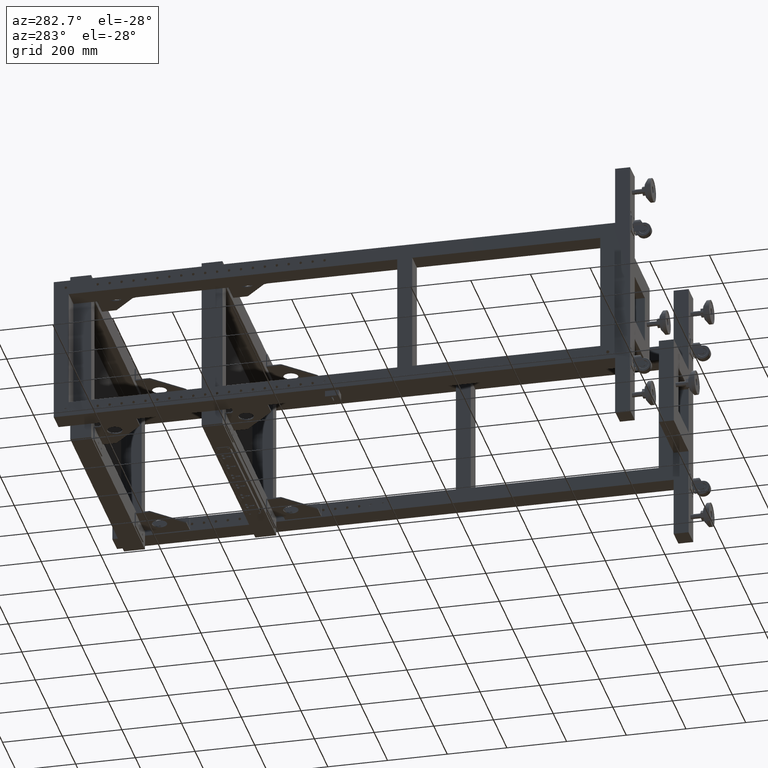
[diagram: clean part render]
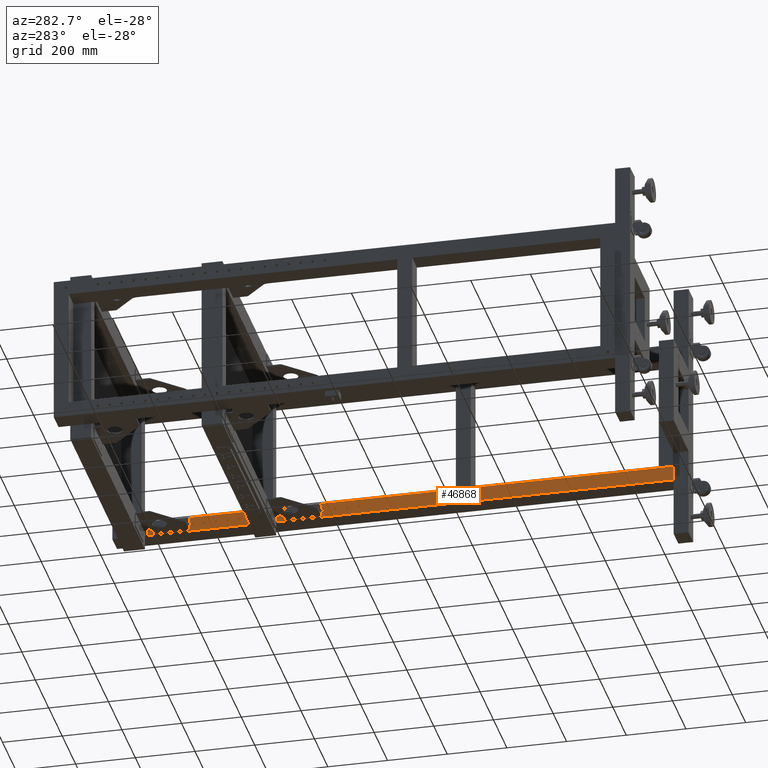
[diagram: same view with one face highlighted and labeled with its STEP entity id]
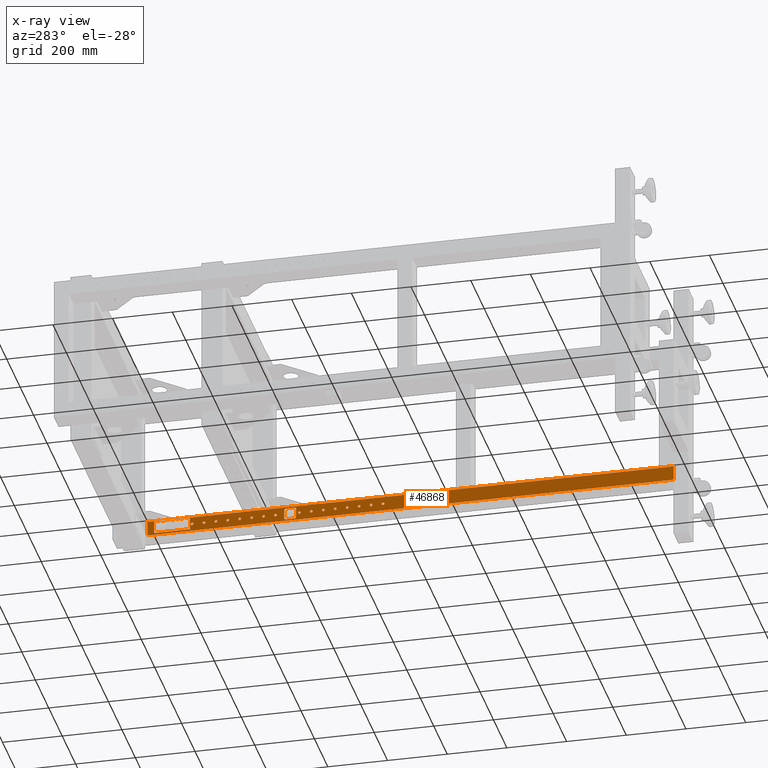
[diagram: x-ray of the same camera — body ghosted, the highlighted face saturated]
A machine part, auxiliary view. The second image highlights one B-rep face of the part: STEP entity #46868.
The next image is the same camera in x-ray: the body ghosted, the highlighted face saturated — about 0% of this face is hidden behind the body in this view.
In plain terms, the highlighted planar face has unit normal (-1, -0, -0).
Its self-contained STEP definition (entity closure, byte-faithful):
#147 = EDGE_CURVE ( 'NONE', #30893, #27719, #60564, .T. ) ;
#397 = AXIS2_PLACEMENT_3D ( 'NONE', #36648, #67865, #61380 ) ;
#458 = CIRCLE ( 'NONE', #38797, 4.500000000000003553 ) ;
#484 = VERTEX_POINT ( 'NONE', #52513 ) ;
#793 = CARTESIAN_POINT ( 'NONE',  ( -468.1724874371851115, 369.4410804020113233, -225.0000000000000000 ) ) ;
#913 = EDGE_LOOP ( 'NONE', ( #15796, #33667 ) ) ;
#1231 = LINE ( 'NONE', #32124, #66318 ) ;
#1333 = ORIENTED_EDGE ( 'NONE', *, *, #46867, .T. ) ;
#1342 = DIRECTION ( 'NONE',  ( 1.000000000000000000, 2.653611717788262425E-16, -0.000000000000000000 ) ) ;
#1567 = CARTESIAN_POINT ( 'NONE',  ( -468.1724874371853389, 919.4410804020113801, -200.0000000000000000 ) ) ;
#1580 = CARTESIAN_POINT ( 'NONE',  ( -468.1724874371853389, 851.4410804020112664, -243.9899999999986733 ) ) ;
#1636 = CARTESIAN_POINT ( 'NONE',  ( -468.1724874371855094, 889.9410804020112664, -200.9999999999986926 ) ) ;
#1818 = CARTESIAN_POINT ( 'NONE',  ( -468.1724874371853389, 609.4410804020113801, -225.0000000000000000 ) ) ;
#1829 = VECTOR ( 'NONE', #43428, 1000.000000000000000 ) ;
#1933 = EDGE_CURVE ( 'NONE', #41405, #65181, #3125, .T. ) ;
#2009 = DIRECTION ( 'NONE',  ( 1.000000000000000000, 2.653611717788262425E-16, -0.000000000000000000 ) ) ;
#2373 = CARTESIAN_POINT ( 'NONE',  ( -468.1724874371851115, 209.4410804020113233, -220.5000000000000000 ) ) ;
#2563 = DIRECTION ( 'NONE',  ( 1.000000000000000000, 2.653611717788262425E-16, -0.000000000000000000 ) ) ;
#3125 = CIRCLE ( 'NONE', #66767, 4.500000000000003553 ) ;
#3181 = EDGE_CURVE ( 'NONE', #38386, #56267, #26199, .T. ) ;
#3388 = CARTESIAN_POINT ( 'NONE',  ( -468.1724874371855094, 896.9410804020113801, -200.9999999999986926 ) ) ;
#3402 = EDGE_LOOP ( 'NONE', ( #11576, #34322 ) ) ;
#3770 = EDGE_LOOP ( 'NONE', ( #18078, #16749 ) ) ;
#4023 = CARTESIAN_POINT ( 'NONE',  ( -468.1724874371851115, 209.4410804020113233, -229.5000000000000000 ) ) ;
#4871 = DIRECTION ( 'NONE',  ( 1.000000000000000000, 2.653611717788262425E-16, -0.000000000000000000 ) ) ;
#4933 = ORIENTED_EDGE ( 'NONE', *, *, #46033, .T. ) ;
#4935 = CARTESIAN_POINT ( 'NONE',  ( -468.1724874371851115, 169.4410804020112664, -225.0000000000000000 ) ) ;
#5163 = DIRECTION ( 'NONE',  ( 0.000000000000000000, 0.000000000000000000, -1.000000000000000000 ) ) ;
#5220 = EDGE_LOOP ( 'NONE', ( #57094, #9026 ) ) ;
#5273 = FACE_BOUND ( 'NONE', #19659, .T. ) ;
#5290 = CIRCLE ( 'NONE', #10770, 7.000000000000006217 ) ;
#5486 = CARTESIAN_POINT ( 'NONE',  ( -468.1724874371853389, 689.4410804020113801, -225.0000000000000000 ) ) ;
#5509 = CARTESIAN_POINT ( 'NONE',  ( -468.1724874371853389, 769.4410804020113801, -229.5000000000000000 ) ) ;
#5521 = CARTESIAN_POINT ( 'NONE',  ( -468.1724874371851115, 169.4410804020112664, -229.5000000000000000 ) ) ;
#5537 = ORIENTED_EDGE ( 'NONE', *, *, #54185, .T. ) ;
#5938 = VERTEX_POINT ( 'NONE', #46241 ) ;
#6011 = DIRECTION ( 'NONE',  ( 1.000000000000000000, 2.653611717788262425E-16, -0.000000000000000000 ) ) ;
#6061 = CARTESIAN_POINT ( 'NONE',  ( -468.1724874371853389, 529.4410804020113801, -225.0000000000000000 ) ) ;
#6085 = AXIS2_PLACEMENT_3D ( 'NONE', #14416, #34291, #13740 ) ;
#6103 = EDGE_LOOP ( 'NONE', ( #13435, #60362 ) ) ;
#6141 = CARTESIAN_POINT ( 'NONE',  ( -468.1724874371851115, 129.4410804020113517, -225.0000000000000000 ) ) ;
#6169 = AXIS2_PLACEMENT_3D ( 'NONE', #5486, #41492, #33472 ) ;
#6316 = CARTESIAN_POINT ( 'NONE',  ( -468.1724874371851115, 289.4410804020112664, -220.5000000000000000 ) ) ;
#7233 = AXIS2_PLACEMENT_3D ( 'NONE', #42049, #35892, #62976 ) ;
#7253 = AXIS2_PLACEMENT_3D ( 'NONE', #18888, #9273, #24358 ) ;
#7305 = CARTESIAN_POINT ( 'NONE',  ( -468.1724874371851115, 129.4410804020113517, -225.0000000000000000 ) ) ;
#7398 = AXIS2_PLACEMENT_3D ( 'NONE', #17297, #22423, #38198 ) ;
#7465 = LINE ( 'NONE', #28370, #14976 ) ;
#7526 = CARTESIAN_POINT ( 'NONE',  ( -468.1724874371853389, 569.4410804020113801, -225.0000000000000000 ) ) ;
#7778 = EDGE_CURVE ( 'NONE', #47852, #15483, #16806, .T. ) ;
#8066 = DIRECTION ( 'NONE',  ( 1.000000000000000000, 2.653611717788262425E-16, -0.000000000000000000 ) ) ;
#8160 = DIRECTION ( 'NONE',  ( 1.000000000000000000, 2.653611717788262425E-16, -0.000000000000000000 ) ) ;
#8214 = EDGE_CURVE ( 'NONE', #45001, #5938, #35902, .T. ) ;
#8778 = CARTESIAN_POINT ( 'NONE',  ( -468.1724874371851115, 329.4410804020113233, -229.5000000000000000 ) ) ;
#9026 = ORIENTED_EDGE ( 'NONE', *, *, #35627, .T. ) ;
#9062 = LINE ( 'NONE', #24153, #67224 ) ;
#9073 = DIRECTION ( 'NONE',  ( 0.000000000000000000, 0.000000000000000000, -1.000000000000000000 ) ) ;
#9180 = CARTESIAN_POINT ( 'NONE',  ( -468.1724874371851115, 169.4410804020112664, -220.5000000000000000 ) ) ;
#9250 = ORIENTED_EDGE ( 'NONE', *, *, #33914, .T. ) ;
#9273 = DIRECTION ( 'NONE',  ( 1.000000000000000000, 2.653611717788262425E-16, -0.000000000000000000 ) ) ;
#9388 = EDGE_CURVE ( 'NONE', #45406, #67811, #35649, .T. ) ;
#9528 = DIRECTION ( 'NONE',  ( -2.653611717788262425E-16, 1.000000000000000000, 0.000000000000000000 ) ) ;
#9560 = CIRCLE ( 'NONE', #39115, 4.500000000000003553 ) ;
#9684 = CARTESIAN_POINT ( 'NONE',  ( -468.1724874371851115, 369.4410804020113233, -229.5000000000000000 ) ) ;
#9836 = CARTESIAN_POINT ( 'NONE',  ( -468.1724874371853389, 649.4410804020112664, -229.5000000000000000 ) ) ;
#9893 = CIRCLE ( 'NONE', #37230, 4.499999999999893419 ) ;
#10055 = EDGE_LOOP ( 'NONE', ( #66558, #5537 ) ) ;
#10081 = FACE_BOUND ( 'NONE', #59238, .T. ) ;
#10109 = CARTESIAN_POINT ( 'NONE',  ( -468.1724874371853389, 609.4410804020113801, -220.5000000000000000 ) ) ;
#10128 = EDGE_CURVE ( 'NONE', #42028, #18949, #33390, .T. ) ;
#10336 = AXIS2_PLACEMENT_3D ( 'NONE', #41620, #61862, #62544 ) ;
#10419 = FACE_BOUND ( 'NONE', #28071, .T. ) ;
#10470 = CARTESIAN_POINT ( 'NONE',  ( -468.1724874371853389, 729.4410804020113801, -225.0000000000000000 ) ) ;
#10689 = DIRECTION ( 'NONE',  ( 0.000000000000000000, 0.000000000000000000, -1.000000000000000000 ) ) ;
#10704 = AXIS2_PLACEMENT_3D ( 'NONE', #793, #54279, #38500 ) ;
#10770 = AXIS2_PLACEMENT_3D ( 'NONE', #17214, #48741, #28851 ) ;
#10994 = DIRECTION ( 'NONE',  ( 0.000000000000000000, 0.000000000000000000, -1.000000000000000000 ) ) ;
#11155 = CARTESIAN_POINT ( 'NONE',  ( -468.1724874371855094, 775.9410804020113801, -200.9999999999986926 ) ) ;
#11534 = EDGE_CURVE ( 'NONE', #18684, #48949, #458, .T. ) ;
#11565 = CARTESIAN_POINT ( 'NONE',  ( -468.1724874371855094, 775.9410804020113801, -207.9999999999986926 ) ) ;
#11576 = ORIENTED_EDGE ( 'NONE', *, *, #29111, .T. ) ;
#11794 = AXIS2_PLACEMENT_3D ( 'NONE', #36245, #56506, #61642 ) ;
#11877 = CARTESIAN_POINT ( 'NONE',  ( -468.1724874371853389, 425.4410804020112664, -240.0000000000000000 ) ) ;
#12039 = CIRCLE ( 'NONE', #56940, 4.500000000000003553 ) ;
#12155 = DIRECTION ( 'NONE',  ( 0.000000000000000000, 0.000000000000000000, -1.000000000000000000 ) ) ;
#12455 = DIRECTION ( 'NONE',  ( 1.000000000000000000, 2.653611717788262425E-16, -0.000000000000000000 ) ) ;
#12582 = ORIENTED_EDGE ( 'NONE', *, *, #57682, .T. ) ;
#12661 = DIRECTION ( 'NONE',  ( 0.000000000000000000, 0.000000000000000000, -1.000000000000000000 ) ) ;
#12708 = CARTESIAN_POINT ( 'NONE',  ( -468.1724874371851115, 289.4410804020112664, -229.5000000000000000 ) ) ;
#12869 = DIRECTION ( 'NONE',  ( 0.000000000000000000, 0.000000000000000000, -1.000000000000000000 ) ) ;
#13435 = ORIENTED_EDGE ( 'NONE', *, *, #35874, .T. ) ;
#13494 = DIRECTION ( 'NONE',  ( 0.000000000000000000, 0.000000000000000000, -1.000000000000000000 ) ) ;
#13602 = CARTESIAN_POINT ( 'NONE',  ( -468.1724874371851115, 129.4410804020113517, -229.5000000000000000 ) ) ;
#13603 = CIRCLE ( 'NONE', #22349, 4.500000000000003553 ) ;
#13740 = DIRECTION ( 'NONE',  ( 0.000000000000000000, 0.000000000000000000, -1.000000000000000000 ) ) ;
#14243 = AXIS2_PLACEMENT_3D ( 'NONE', #10470, #25223, #45793 ) ;
#14326 = ORIENTED_EDGE ( 'NONE', *, *, #39922, .T. ) ;
#14416 = CARTESIAN_POINT ( 'NONE',  ( -468.1724874371853389, 769.4410804020113801, -225.0000000000000000 ) ) ;
#14518 = EDGE_CURVE ( 'NONE', #54511, #36213, #61074, .T. ) ;
#14976 = VECTOR ( 'NONE', #17403, 1000.000000000000000 ) ;
#15061 = EDGE_LOOP ( 'NONE', ( #1333, #23221 ) ) ;
#15483 = VERTEX_POINT ( 'NONE', #39015 ) ;
#15617 = CIRCLE ( 'NONE', #20024, 4.500000000000003553 ) ;
#15681 = LINE ( 'NONE', #62329, #31622 ) ;
#15796 = ORIENTED_EDGE ( 'NONE', *, *, #147, .T. ) ;
#15981 = AXIS2_PLACEMENT_3D ( 'NONE', #36733, #26801, #10689 ) ;
#16093 = EDGE_CURVE ( 'NONE', #484, #35471, #37014, .T. ) ;
#16296 = CIRCLE ( 'NONE', #25043, 4.500000000000003553 ) ;
#16446 = CIRCLE ( 'NONE', #40661, 7.000000000000006217 ) ;
#16507 = EDGE_CURVE ( 'NONE', #27719, #30893, #23277, .T. ) ;
#16749 = ORIENTED_EDGE ( 'NONE', *, *, #59242, .T. ) ;
#16806 = CIRCLE ( 'NONE', #397, 5.000000000000004441 ) ;
#16828 = VERTEX_POINT ( 'NONE', #4023 ) ;
#16940 = AXIS2_PLACEMENT_3D ( 'NONE', #1818, #22755, #17619 ) ;
#17214 = CARTESIAN_POINT ( 'NONE',  ( -468.1724874371855094, 889.9410804020112664, -207.9999999999986926 ) ) ;
#17297 = CARTESIAN_POINT ( 'NONE',  ( -468.1724874371853389, 489.4410804020113233, -225.0000000000000000 ) ) ;
#17355 = DIRECTION ( 'NONE',  ( 1.000000000000000000, 2.653611717788262425E-16, -0.000000000000000000 ) ) ;
#17365 = DIRECTION ( 'NONE',  ( 1.000000000000000000, 2.653611717788262425E-16, -0.000000000000000000 ) ) ;
#17403 = DIRECTION ( 'NONE',  ( 4.625929269271509580E-16, -3.700743415417200564E-15, -1.000000000000000000 ) ) ;
#17520 = ORIENTED_EDGE ( 'NONE', *, *, #7778, .T. ) ;
#17538 = ORIENTED_EDGE ( 'NONE', *, *, #51117, .T. ) ;
#17619 = DIRECTION ( 'NONE',  ( 0.000000000000000000, 0.000000000000000000, -1.000000000000000000 ) ) ;
#17713 = EDGE_CURVE ( 'NONE', #40727, #67477, #9062, .T. ) ;
#18078 = ORIENTED_EDGE ( 'NONE', *, *, #55600, .T. ) ;
#18256 = CIRCLE ( 'NONE', #31428, 4.500000000000003553 ) ;
#18684 = VERTEX_POINT ( 'NONE', #51753 ) ;
#18730 = CARTESIAN_POINT ( 'NONE',  ( -468.1724874371853389, 569.4410804020113801, -225.0000000000000000 ) ) ;
#18871 = DIRECTION ( 'NONE',  ( 0.000000000000000000, 0.000000000000000000, -1.000000000000000000 ) ) ;
#18888 = CARTESIAN_POINT ( 'NONE',  ( -468.1724874371853389, 649.4410804020112664, -225.0000000000000000 ) ) ;
#18949 = VERTEX_POINT ( 'NONE', #54801 ) ;
#18958 = EDGE_LOOP ( 'NONE', ( #60262, #37437, #63584, #9250, #19569, #21378, #17520, #12582 ) ) ;
#18989 = EDGE_LOOP ( 'NONE', ( #59928, #24152 ) ) ;
#19136 = EDGE_CURVE ( 'NONE', #49415, #32736, #26898, .T. ) ;
#19354 = VERTEX_POINT ( 'NONE', #19958 ) ;
#19438 = EDGE_CURVE ( 'NONE', #25225, #46363, #57588, .T. ) ;
#19472 = CARTESIAN_POINT ( 'NONE',  ( -468.1724874371853389, 455.4410804020113233, -205.0000000000000284 ) ) ;
#19511 = DIRECTION ( 'NONE',  ( -4.498682352102549724E-16, -1.193775620414658765E-31, 1.000000000000000000 ) ) ;
#19569 = ORIENTED_EDGE ( 'NONE', *, *, #39480, .T. ) ;
#19659 = EDGE_LOOP ( 'NONE', ( #44948, #51303 ) ) ;
#19720 = CIRCLE ( 'NONE', #14243, 4.500000000000003553 ) ;
#19828 = ORIENTED_EDGE ( 'NONE', *, *, #60792, .T. ) ;
#19958 = CARTESIAN_POINT ( 'NONE',  ( -468.1724874371853389, 489.4410804020113233, -229.5000000000000000 ) ) ;
#19978 = VERTEX_POINT ( 'NONE', #1636 ) ;
#20024 = AXIS2_PLACEMENT_3D ( 'NONE', #34189, #8160, #49968 ) ;
#20068 = DIRECTION ( 'NONE',  ( 1.000000000000000000, 2.653611717788262425E-16, -0.000000000000000000 ) ) ;
#20367 = FACE_BOUND ( 'NONE', #51654, .T. ) ;
#20530 = ORIENTED_EDGE ( 'NONE', *, *, #23697, .F. ) ;
#20596 = DIRECTION ( 'NONE',  ( 1.000000000000000000, 2.653611717788262425E-16, -0.000000000000000000 ) ) ;
#20706 = FACE_BOUND ( 'NONE', #58898, .T. ) ;
#20718 = DIRECTION ( 'NONE',  ( 1.000000000000000000, 2.653611717788262425E-16, -0.000000000000000000 ) ) ;
#20886 = VERTEX_POINT ( 'NONE', #35060 ) ;
#21378 = ORIENTED_EDGE ( 'NONE', *, *, #40407, .T. ) ;
#21785 = CARTESIAN_POINT ( 'NONE',  ( -468.1724874371851115, 209.4410804020113233, -225.0000000000000000 ) ) ;
#21815 = CARTESIAN_POINT ( 'NONE',  ( -468.1724874371853389, 569.4410804020113801, -220.5000000000000000 ) ) ;
#21846 = EDGE_CURVE ( 'NONE', #23999, #40727, #52122, .T. ) ;
#22162 = DIRECTION ( 'NONE',  ( 2.775557561562890365E-16, 7.365252068759102319E-32, -1.000000000000000000 ) ) ;
#22349 = AXIS2_PLACEMENT_3D ( 'NONE', #4935, #46758, #63223 ) ;
#22366 = EDGE_CURVE ( 'NONE', #23999, #40435, #1231, .T. ) ;
#22423 = DIRECTION ( 'NONE',  ( 1.000000000000000000, 2.653611717788262425E-16, -0.000000000000000000 ) ) ;
#22578 = DIRECTION ( 'NONE',  ( 0.000000000000000000, 0.000000000000000000, -1.000000000000000000 ) ) ;
#22727 = ORIENTED_EDGE ( 'NONE', *, *, #8214, .T. ) ;
#22755 = DIRECTION ( 'NONE',  ( 1.000000000000000000, 2.653611717788262425E-16, -0.000000000000000000 ) ) ;
#22777 = AXIS2_PLACEMENT_3D ( 'NONE', #62489, #4871, #41220 ) ;
#23221 = ORIENTED_EDGE ( 'NONE', *, *, #1933, .T. ) ;
#23277 = CIRCLE ( 'NONE', #62691, 4.500000000000003553 ) ;
#23697 = EDGE_CURVE ( 'NONE', #25585, #5938, #58200, .T. ) ;
#23913 = VERTEX_POINT ( 'NONE', #24876 ) ;
#23999 = VERTEX_POINT ( 'NONE', #67390 ) ;
#24152 = ORIENTED_EDGE ( 'NONE', *, *, #24235, .T. ) ;
#24153 = CARTESIAN_POINT ( 'NONE',  ( -468.1724874371853389, 919.4410804020113801, -250.0000000000000000 ) ) ;
#24194 = DIRECTION ( 'NONE',  ( 1.000000000000000000, 2.653611717788262425E-16, -0.000000000000000000 ) ) ;
#24200 = DIRECTION ( 'NONE',  ( 1.000000000000000000, 2.653611717788262425E-16, -0.000000000000000000 ) ) ;
#24235 = EDGE_CURVE ( 'NONE', #42218, #19354, #66519, .T. ) ;
#24358 = DIRECTION ( 'NONE',  ( 0.000000000000000000, 0.000000000000000000, -1.000000000000000000 ) ) ;
#24640 = EDGE_CURVE ( 'NONE', #19978, #40414, #5290, .T. ) ;
#24682 = CARTESIAN_POINT ( 'NONE',  ( -468.1724874371855094, 782.9410804020112664, -200.9999999999986926 ) ) ;
#24876 = CARTESIAN_POINT ( 'NONE',  ( -468.1724874371853389, 425.4410804020112664, -205.0000000000000284 ) ) ;
#24930 = CARTESIAN_POINT ( 'NONE',  ( -468.1724874371853389, 775.9410804020113801, -243.9999999999986926 ) ) ;
#25043 = AXIS2_PLACEMENT_3D ( 'NONE', #27881, #12455, #48789 ) ;
#25057 = VERTEX_POINT ( 'NONE', #49675 ) ;
#25223 = DIRECTION ( 'NONE',  ( 1.000000000000000000, 2.653611717788262425E-16, -0.000000000000000000 ) ) ;
#25225 = VERTEX_POINT ( 'NONE', #60323 ) ;
#25281 = LINE ( 'NONE', #56848, #42003 ) ;
#25369 = VERTEX_POINT ( 'NONE', #51381 ) ;
#25585 = VERTEX_POINT ( 'NONE', #57051 ) ;
#25702 = CARTESIAN_POINT ( 'NONE',  ( -468.1724874371853389, 455.4410804020113233, -205.0000000000000284 ) ) ;
#26083 = CIRCLE ( 'NONE', #64405, 4.500000000000003553 ) ;
#26130 = AXIS2_PLACEMENT_3D ( 'NONE', #55723, #8066, #9073 ) ;
#26199 = CIRCLE ( 'NONE', #64518, 5.000000000000004441 ) ;
#26525 = FACE_BOUND ( 'NONE', #15061, .T. ) ;
#26771 = CARTESIAN_POINT ( 'NONE',  ( -468.1724874371853389, 425.4410804020112664, -210.0000000000000000 ) ) ;
#26801 = DIRECTION ( 'NONE',  ( 1.000000000000000000, 2.653611717788262425E-16, -0.000000000000000000 ) ) ;
#26852 = ORIENTED_EDGE ( 'NONE', *, *, #21846, .T. ) ;
#26898 = CIRCLE ( 'NONE', #7233, 4.500000000000003553 ) ;
#27534 = ORIENTED_EDGE ( 'NONE', *, *, #60638, .F. ) ;
#27719 = VERTEX_POINT ( 'NONE', #63039 ) ;
#27811 = AXIS2_PLACEMENT_3D ( 'NONE', #61595, #55782, #39322 ) ;
#27881 = CARTESIAN_POINT ( 'NONE',  ( -468.1724874371853389, 609.4410804020113801, -225.0000000000000000 ) ) ;
#28071 = EDGE_LOOP ( 'NONE', ( #28337, #54671 ) ) ;
#28302 = CIRCLE ( 'NONE', #66782, 4.499999999999893419 ) ;
#28323 = CARTESIAN_POINT ( 'NONE',  ( -468.1724874371853389, 769.4410804020113801, -225.0000000000000000 ) ) ;
#28337 = ORIENTED_EDGE ( 'NONE', *, *, #51035, .T. ) ;
#28370 = CARTESIAN_POINT ( 'NONE',  ( -468.1724874371853389, 420.4410804020112664, -240.0000000000000000 ) ) ;
#28493 = CIRCLE ( 'NONE', #30552, 4.500000000000003553 ) ;
#28851 = DIRECTION ( 'NONE',  ( 0.000000000000000000, 0.000000000000000000, -1.000000000000000000 ) ) ;
#28923 = CARTESIAN_POINT ( 'NONE',  ( -468.1724874371853389, 529.4410804020113801, -225.0000000000000000 ) ) ;
#29111 = EDGE_CURVE ( 'NONE', #36213, #54511, #15617, .T. ) ;
#29178 = CARTESIAN_POINT ( 'NONE',  ( -468.1724874371851115, 209.4410804020113233, -225.0000000000000000 ) ) ;
#29949 = VECTOR ( 'NONE', #19511, 1000.000000000000000 ) ;
#30552 = AXIS2_PLACEMENT_3D ( 'NONE', #29178, #39466, #59362 ) ;
#30650 = AXIS2_PLACEMENT_3D ( 'NONE', #18730, #24200, #60548 ) ;
#30668 = FACE_BOUND ( 'NONE', #3770, .T. ) ;
#30893 = VERTEX_POINT ( 'NONE', #13602 ) ;
#30995 = FACE_BOUND ( 'NONE', #18958, .T. ) ;
#31008 = CARTESIAN_POINT ( 'NONE',  ( -468.1724874371851115, 249.4410804020113517, -225.0000000000000000 ) ) ;
#31189 = CARTESIAN_POINT ( 'NONE',  ( -468.1724874371853389, 649.4410804020112664, -220.5000000000000000 ) ) ;
#31428 = AXIS2_PLACEMENT_3D ( 'NONE', #28923, #60136, #13494 ) ;
#31622 = VECTOR ( 'NONE', #9528, 1000.000000000000000 ) ;
#31670 = PLANE ( 'NONE',  #10336 ) ;
#32006 = FACE_BOUND ( 'NONE', #18989, .T. ) ;
#32054 = CARTESIAN_POINT ( 'NONE',  ( -468.1724874371855094, 782.9410804020112664, -207.9999999999986926 ) ) ;
#32109 = DIRECTION ( 'NONE',  ( 0.000000000000000000, 0.000000000000000000, 1.000000000000000000 ) ) ;
#32124 = CARTESIAN_POINT ( 'NONE',  ( -468.1724874371848841, -844.5589195979887336, -250.0000000000000000 ) ) ;
#32454 = DIRECTION ( 'NONE',  ( 0.000000000000000000, 0.000000000000000000, -1.000000000000000000 ) ) ;
#32598 = CIRCLE ( 'NONE', #11794, 4.500000000000003553 ) ;
#32677 = DIRECTION ( 'NONE',  ( 0.000000000000000000, 0.000000000000000000, -1.000000000000000000 ) ) ;
#32736 = VERTEX_POINT ( 'NONE', #9836 ) ;
#33390 = CIRCLE ( 'NONE', #16940, 4.500000000000003553 ) ;
#33469 = DIRECTION ( 'NONE',  ( 1.000000000000000000, 2.653611717788262425E-16, -0.000000000000000000 ) ) ;
#33472 = DIRECTION ( 'NONE',  ( 0.000000000000000000, 0.000000000000000000, -1.000000000000000000 ) ) ;
#33667 = ORIENTED_EDGE ( 'NONE', *, *, #16507, .T. ) ;
#33805 = VERTEX_POINT ( 'NONE', #41772 ) ;
#33850 = ORIENTED_EDGE ( 'NONE', *, *, #16093, .T. ) ;
#33914 = EDGE_CURVE ( 'NONE', #67248, #57601, #7465, .T. ) ;
#34189 = CARTESIAN_POINT ( 'NONE',  ( -468.1724874371851115, 369.4410804020113233, -225.0000000000000000 ) ) ;
#34291 = DIRECTION ( 'NONE',  ( 1.000000000000000000, 2.653611717788262425E-16, -0.000000000000000000 ) ) ;
#34322 = ORIENTED_EDGE ( 'NONE', *, *, #14518, .T. ) ;
#34373 = CARTESIAN_POINT ( 'NONE',  ( -468.1724874371853389, 489.4410804020113233, -220.5000000000000000 ) ) ;
#34880 = CIRCLE ( 'NONE', #26130, 4.499999999999893419 ) ;
#35060 = CARTESIAN_POINT ( 'NONE',  ( -468.1724874371853389, 689.4410804020113801, -229.5000000000000000 ) ) ;
#35075 = DIRECTION ( 'NONE',  ( 1.000000000000000000, 2.653611717788262425E-16, -0.000000000000000000 ) ) ;
#35391 = ORIENTED_EDGE ( 'NONE', *, *, #35765, .T. ) ;
#35463 = EDGE_CURVE ( 'NONE', #19354, #42218, #26083, .T. ) ;
#35471 = VERTEX_POINT ( 'NONE', #54710 ) ;
#35627 = EDGE_CURVE ( 'NONE', #25057, #54244, #34880, .T. ) ;
#35649 = CIRCLE ( 'NONE', #6085, 4.500000000000003553 ) ;
#35765 = EDGE_CURVE ( 'NONE', #46363, #25225, #52413, .T. ) ;
#35874 = EDGE_CURVE ( 'NONE', #18949, #42028, #16296, .T. ) ;
#35892 = DIRECTION ( 'NONE',  ( 1.000000000000000000, 2.653611717788262425E-16, -0.000000000000000000 ) ) ;
#35902 = LINE ( 'NONE', #24930, #49690 ) ;
#35993 = VECTOR ( 'NONE', #47043, 1000.000000000000000 ) ;
#36028 = AXIS2_PLACEMENT_3D ( 'NONE', #6061, #17365, #32454 ) ;
#36213 = VERTEX_POINT ( 'NONE', #9684 ) ;
#36245 = CARTESIAN_POINT ( 'NONE',  ( -468.1724874371851115, 409.4410804020112664, -225.0000000000000000 ) ) ;
#36409 = LINE ( 'NONE', #52872, #35993 ) ;
#36648 = CARTESIAN_POINT ( 'NONE',  ( -468.1724874371853389, 455.4410804020113233, -240.0000000000000000 ) ) ;
#36691 = VERTEX_POINT ( 'NONE', #37999 ) ;
#36733 = CARTESIAN_POINT ( 'NONE',  ( -468.1724874371851115, 249.4410804020113517, -225.0000000000000000 ) ) ;
#36891 = EDGE_CURVE ( 'NONE', #19978, #38829, #58468, .T. ) ;
#36900 = EDGE_CURVE ( 'NONE', #45890, #16828, #12039, .T. ) ;
#37014 = CIRCLE ( 'NONE', #22777, 4.500000000000003553 ) ;
#37230 = AXIS2_PLACEMENT_3D ( 'NONE', #51873, #35075, #66282 ) ;
#37437 = ORIENTED_EDGE ( 'NONE', *, *, #41438, .T. ) ;
#37999 = CARTESIAN_POINT ( 'NONE',  ( -468.1724874371853389, 529.4410804020113801, -229.5000000000000000 ) ) ;
#38198 = DIRECTION ( 'NONE',  ( 0.000000000000000000, 0.000000000000000000, -1.000000000000000000 ) ) ;
#38234 = CIRCLE ( 'NONE', #55783, 5.000000000000004441 ) ;
#38386 = VERTEX_POINT ( 'NONE', #39597 ) ;
#38500 = DIRECTION ( 'NONE',  ( 0.000000000000000000, 0.000000000000000000, -1.000000000000000000 ) ) ;
#38797 = AXIS2_PLACEMENT_3D ( 'NONE', #7526, #2009, #12661 ) ;
#38829 = VERTEX_POINT ( 'NONE', #24682 ) ;
#39005 = CIRCLE ( 'NONE', #6169, 4.500000000000003553 ) ;
#39015 = CARTESIAN_POINT ( 'NONE',  ( -468.1724874371853389, 460.4410804020113233, -240.0000000000000000 ) ) ;
#39115 = AXIS2_PLACEMENT_3D ( 'NONE', #45783, #20068, #41661 ) ;
#39122 = CARTESIAN_POINT ( 'NONE',  ( -468.1724874371855094, 896.9410804020113801, -207.9999999999986926 ) ) ;
#39186 = ORIENTED_EDGE ( 'NONE', *, *, #24640, .F. ) ;
#39322 = DIRECTION ( 'NONE',  ( 0.000000000000000000, 0.000000000000000000, -1.000000000000000000 ) ) ;
#39466 = DIRECTION ( 'NONE',  ( 1.000000000000000000, 2.653611717788262425E-16, -0.000000000000000000 ) ) ;
#39480 = EDGE_CURVE ( 'NONE', #57601, #54749, #38234, .T. ) ;
#39597 = CARTESIAN_POINT ( 'NONE',  ( -468.1724874371853389, 460.4410804020113233, -210.0000000000000000 ) ) ;
#39827 = ORIENTED_EDGE ( 'NONE', *, *, #54275, .T. ) ;
#39922 = EDGE_CURVE ( 'NONE', #50437, #66460, #28302, .T. ) ;
#40407 = EDGE_CURVE ( 'NONE', #54749, #47852, #36409, .T. ) ;
#40414 = VERTEX_POINT ( 'NONE', #39122 ) ;
#40435 = VERTEX_POINT ( 'NONE', #54565 ) ;
#40622 = CARTESIAN_POINT ( 'NONE',  ( -468.1724874371853389, 919.4410804020138812, -250.0000000000000000 ) ) ;
#40661 = AXIS2_PLACEMENT_3D ( 'NONE', #32054, #64283, #12155 ) ;
#40714 = DIRECTION ( 'NONE',  ( 2.653611717788262425E-16, -1.000000000000000000, 0.000000000000000000 ) ) ;
#40727 = VERTEX_POINT ( 'NONE', #1567 ) ;
#40821 = EDGE_CURVE ( 'NONE', #67811, #45406, #48121, .T. ) ;
#41220 = DIRECTION ( 'NONE',  ( 0.000000000000000000, 0.000000000000000000, -1.000000000000000000 ) ) ;
#41285 = FACE_BOUND ( 'NONE', #50487, .T. ) ;
#41405 = VERTEX_POINT ( 'NONE', #9180 ) ;
#41438 = EDGE_CURVE ( 'NONE', #56267, #23913, #44507, .T. ) ;
#41492 = DIRECTION ( 'NONE',  ( 1.000000000000000000, 2.653611717788262425E-16, -0.000000000000000000 ) ) ;
#41575 = ORIENTED_EDGE ( 'NONE', *, *, #22366, .F. ) ;
#41620 = CARTESIAN_POINT ( 'NONE',  ( -468.1724874371848841, -844.5589195979887336, -250.0000000000000000 ) ) ;
#41661 = DIRECTION ( 'NONE',  ( 0.000000000000000000, 0.000000000000000000, -1.000000000000000000 ) ) ;
#41772 = CARTESIAN_POINT ( 'NONE',  ( -468.1724874371853389, 529.4410804020113801, -220.5000000000000000 ) ) ;
#42003 = VECTOR ( 'NONE', #51350, 1000.000000000000000 ) ;
#42028 = VERTEX_POINT ( 'NONE', #10109 ) ;
#42049 = CARTESIAN_POINT ( 'NONE',  ( -468.1724874371853389, 649.4410804020112664, -225.0000000000000000 ) ) ;
#42193 = ORIENTED_EDGE ( 'NONE', *, *, #19438, .T. ) ;
#42218 = VERTEX_POINT ( 'NONE', #34373 ) ;
#42290 = FACE_BOUND ( 'NONE', #62759, .T. ) ;
#43428 = DIRECTION ( 'NONE',  ( 2.653611717788262425E-16, -1.000000000000000000, 0.000000000000000000 ) ) ;
#43776 = VECTOR ( 'NONE', #40714, 1000.000000000000000 ) ;
#44065 = CARTESIAN_POINT ( 'NONE',  ( -468.1724874371853389, 489.4410804020113233, -225.0000000000000000 ) ) ;
#44507 = LINE ( 'NONE', #19472, #43776 ) ;
#44634 = CARTESIAN_POINT ( 'NONE',  ( -468.1724874371853389, 769.4410804020113801, -220.5000000000000000 ) ) ;
#44948 = ORIENTED_EDGE ( 'NONE', *, *, #61794, .T. ) ;
#45001 = VERTEX_POINT ( 'NONE', #11565 ) ;
#45111 = EDGE_CURVE ( 'NONE', #66460, #50437, #57377, .T. ) ;
#45406 = VERTEX_POINT ( 'NONE', #44634 ) ;
#45685 = EDGE_CURVE ( 'NONE', #23913, #67248, #62765, .T. ) ;
#45783 = CARTESIAN_POINT ( 'NONE',  ( -468.1724874371853389, 729.4410804020113801, -225.0000000000000000 ) ) ;
#45793 = DIRECTION ( 'NONE',  ( 0.000000000000000000, 0.000000000000000000, -1.000000000000000000 ) ) ;
#45890 = VERTEX_POINT ( 'NONE', #2373 ) ;
#45970 = CARTESIAN_POINT ( 'NONE',  ( -468.1724874371853389, 455.4410804020113233, -210.0000000000000000 ) ) ;
#46033 = EDGE_CURVE ( 'NONE', #25585, #40414, #66479, .T. ) ;
#46241 = CARTESIAN_POINT ( 'NONE',  ( -468.1724874371853389, 775.9410804020113801, -243.9899999999987017 ) ) ;
#46264 = CARTESIAN_POINT ( 'NONE',  ( -468.1724874371851115, 169.4410804020112664, -225.0000000000000000 ) ) ;
#46363 = VERTEX_POINT ( 'NONE', #55442 ) ;
#46421 = FACE_BOUND ( 'NONE', #10055, .T. ) ;
#46493 = EDGE_LOOP ( 'NONE', ( #51740, #19828 ) ) ;
#46758 = DIRECTION ( 'NONE',  ( 1.000000000000000000, 2.653611717788262425E-16, -0.000000000000000000 ) ) ;
#46868 = ADVANCED_FACE ( 'NONE', ( #10081, #47426, #26525, #5273, #67680, #41285, #57072, #51574, #42290, #32006, #58069, #46421, #67333, #10419, #20706, #30668, #20367, #30995, #62208 ), #31670, .T. ) ;
#46867 = EDGE_CURVE ( 'NONE', #65181, #41405, #13603, .T. ) ;
#47043 = DIRECTION ( 'NONE',  ( -2.653611717788262425E-16, 1.000000000000000000, 0.000000000000000000 ) ) ;
#47122 = CARTESIAN_POINT ( 'NONE',  ( -468.1724874371851115, 289.4410804020112664, -225.0000000000000000 ) ) ;
#47426 = FACE_BOUND ( 'NONE', #913, .T. ) ;
#47852 = VERTEX_POINT ( 'NONE', #53691 ) ;
#47956 = DIRECTION ( 'NONE',  ( 1.000000000000000000, 2.653611717788262425E-16, -0.000000000000000000 ) ) ;
#48121 = CIRCLE ( 'NONE', #56917, 4.500000000000003553 ) ;
#48148 = CIRCLE ( 'NONE', #30650, 4.500000000000003553 ) ;
#48268 = EDGE_LOOP ( 'NONE', ( #56956, #27534, #41575, #26852 ) ) ;
#48741 = DIRECTION ( 'NONE',  ( -1.000000000000000000, -2.653611717788262425E-16, -3.491776919586969661E-17 ) ) ;
#48789 = DIRECTION ( 'NONE',  ( 0.000000000000000000, 0.000000000000000000, -1.000000000000000000 ) ) ;
#48949 = VERTEX_POINT ( 'NONE', #21815 ) ;
#49236 = DIRECTION ( 'NONE',  ( 0.000000000000000000, 0.000000000000000000, -1.000000000000000000 ) ) ;
#49415 = VERTEX_POINT ( 'NONE', #31189 ) ;
#49675 = CARTESIAN_POINT ( 'NONE',  ( -468.1724874371851115, 329.4410804020113233, -220.5000000000000000 ) ) ;
#49690 = VECTOR ( 'NONE', #56840, 1000.000000000000000 ) ;
#49832 = ORIENTED_EDGE ( 'NONE', *, *, #45111, .T. ) ;
#49968 = DIRECTION ( 'NONE',  ( 0.000000000000000000, 0.000000000000000000, -1.000000000000000000 ) ) ;
#50115 = DIRECTION ( 'NONE',  ( 2.653611717788262425E-16, -1.000000000000000000, 0.000000000000000000 ) ) ;
#50325 = CARTESIAN_POINT ( 'NONE',  ( -468.1724874371853389, 420.4410804020112664, -240.0000000000000000 ) ) ;
#50437 = VERTEX_POINT ( 'NONE', #6316 ) ;
#50487 = EDGE_LOOP ( 'NONE', ( #49832, #14326 ) ) ;
#51035 = EDGE_CURVE ( 'NONE', #32736, #49415, #66373, .T. ) ;
#51117 = EDGE_CURVE ( 'NONE', #20886, #25369, #39005, .T. ) ;
#51303 = ORIENTED_EDGE ( 'NONE', *, *, #36900, .T. ) ;
#51350 = DIRECTION ( 'NONE',  ( -4.625929269271499719E-16, -1.227542011459854510E-31, 1.000000000000000000 ) ) ;
#51381 = CARTESIAN_POINT ( 'NONE',  ( -468.1724874371853389, 689.4410804020113801, -220.5000000000000000 ) ) ;
#51565 = ORIENTED_EDGE ( 'NONE', *, *, #55698, .F. ) ;
#51574 = FACE_BOUND ( 'NONE', #3402, .T. ) ;
#51654 = EDGE_LOOP ( 'NONE', ( #62778, #57230 ) ) ;
#51740 = ORIENTED_EDGE ( 'NONE', *, *, #51805, .T. ) ;
#51753 = CARTESIAN_POINT ( 'NONE',  ( -468.1724874371853389, 569.4410804020113801, -229.5000000000000000 ) ) ;
#51805 = EDGE_CURVE ( 'NONE', #36691, #33805, #18256, .T. ) ;
#51873 = CARTESIAN_POINT ( 'NONE',  ( -468.1724874371851115, 329.4410804020113233, -225.0000000000000000 ) ) ;
#52122 = LINE ( 'NONE', #56593, #59670 ) ;
#52413 = CIRCLE ( 'NONE', #61179, 4.499999999999893419 ) ;
#52513 = CARTESIAN_POINT ( 'NONE',  ( -468.1724874371851115, 409.4410804020112664, -220.5000000000000000 ) ) ;
#52678 = EDGE_CURVE ( 'NONE', #35471, #484, #32598, .T. ) ;
#52872 = CARTESIAN_POINT ( 'NONE',  ( -468.1724874371853389, 455.4410804020113233, -245.0000000000000000 ) ) ;
#53286 = DIRECTION ( 'NONE',  ( 1.000000000000000000, 2.653611717788262425E-16, -0.000000000000000000 ) ) ;
#53648 = CARTESIAN_POINT ( 'NONE',  ( -468.1724874371851115, 369.4410804020113233, -220.5000000000000000 ) ) ;
#53691 = CARTESIAN_POINT ( 'NONE',  ( -468.1724874371853389, 455.4410804020113233, -245.0000000000000000 ) ) ;
#54008 = DIRECTION ( 'NONE',  ( 0.000000000000000000, 0.000000000000000000, -1.000000000000000000 ) ) ;
#54141 = ORIENTED_EDGE ( 'NONE', *, *, #52678, .T. ) ;
#54185 = EDGE_CURVE ( 'NONE', #48949, #18684, #48148, .T. ) ;
#54244 = VERTEX_POINT ( 'NONE', #8778 ) ;
#54275 = EDGE_CURVE ( 'NONE', #25369, #20886, #62367, .T. ) ;
#54279 = DIRECTION ( 'NONE',  ( 1.000000000000000000, 2.653611717788262425E-16, -0.000000000000000000 ) ) ;
#54405 = DIRECTION ( 'NONE',  ( 0.000000000000000000, 0.000000000000000000, -1.000000000000000000 ) ) ;
#54511 = VERTEX_POINT ( 'NONE', #53648 ) ;
#54565 = CARTESIAN_POINT ( 'NONE',  ( -468.1724874371848841, -844.5589195979887336, -250.0000000000000000 ) ) ;
#54671 = ORIENTED_EDGE ( 'NONE', *, *, #19136, .T. ) ;
#54710 = CARTESIAN_POINT ( 'NONE',  ( -468.1724874371851115, 409.4410804020112664, -229.5000000000000000 ) ) ;
#54749 = VERTEX_POINT ( 'NONE', #61824 ) ;
#54761 = EDGE_CURVE ( 'NONE', #54244, #25057, #9893, .T. ) ;
#54801 = CARTESIAN_POINT ( 'NONE',  ( -468.1724874371853389, 609.4410804020113801, -229.5000000000000000 ) ) ;
#55113 = AXIS2_PLACEMENT_3D ( 'NONE', #26771, #1342, #10994 ) ;
#55364 = DIRECTION ( 'NONE',  ( 2.775557561562888393E-16, 8.326672684688671095E-16, -1.000000000000000000 ) ) ;
#55442 = CARTESIAN_POINT ( 'NONE',  ( -468.1724874371851115, 249.4410804020113517, -229.5000000000000000 ) ) ;
#55600 = EDGE_CURVE ( 'NONE', #64556, #66308, #19720, .T. ) ;
#55698 = EDGE_CURVE ( 'NONE', #45001, #38829, #16446, .T. ) ;
#55720 = CARTESIAN_POINT ( 'NONE',  ( -468.1724874371853389, 729.4410804020113801, -220.5000000000000000 ) ) ;
#55723 = CARTESIAN_POINT ( 'NONE',  ( -468.1724874371851115, 329.4410804020113233, -225.0000000000000000 ) ) ;
#55782 = DIRECTION ( 'NONE',  ( 1.000000000000000000, 2.653611717788262425E-16, -0.000000000000000000 ) ) ;
#55783 = AXIS2_PLACEMENT_3D ( 'NONE', #11877, #17355, #32109 ) ;
#56251 = DIRECTION ( 'NONE',  ( -2.653611717788262425E-16, 1.000000000000000000, 0.000000000000000000 ) ) ;
#56267 = VERTEX_POINT ( 'NONE', #25702 ) ;
#56506 = DIRECTION ( 'NONE',  ( 1.000000000000000000, 2.653611717788262425E-16, -0.000000000000000000 ) ) ;
#56593 = CARTESIAN_POINT ( 'NONE',  ( -468.1724874371848841, -844.5589195979887336, -200.0000000000000000 ) ) ;
#56840 = DIRECTION ( 'NONE',  ( 4.498682352102549724E-16, 1.193775620414658765E-31, -1.000000000000000000 ) ) ;
#56848 = CARTESIAN_POINT ( 'NONE',  ( -468.1724874371853389, 460.4410804020113233, -240.0000000000000000 ) ) ;
#56917 = AXIS2_PLACEMENT_3D ( 'NONE', #28323, #24194, #49236 ) ;
#56940 = AXIS2_PLACEMENT_3D ( 'NONE', #21785, #6011, #54008 ) ;
#56956 = ORIENTED_EDGE ( 'NONE', *, *, #17713, .T. ) ;
#57051 = CARTESIAN_POINT ( 'NONE',  ( -468.1724874371853389, 896.9410804020113801, -243.9899999999986733 ) ) ;
#57072 = FACE_BOUND ( 'NONE', #5220, .T. ) ;
#57094 = ORIENTED_EDGE ( 'NONE', *, *, #54761, .T. ) ;
#57230 = ORIENTED_EDGE ( 'NONE', *, *, #9388, .T. ) ;
#57377 = CIRCLE ( 'NONE', #27811, 4.499999999999893419 ) ;
#57407 = DIRECTION ( 'NONE',  ( 0.000000000000000000, 0.000000000000000000, -1.000000000000000000 ) ) ;
#57588 = CIRCLE ( 'NONE', #15981, 4.499999999999893419 ) ;
#57601 = VERTEX_POINT ( 'NONE', #50325 ) ;
#57682 = EDGE_CURVE ( 'NONE', #15483, #38386, #25281, .T. ) ;
#57755 = DIRECTION ( 'NONE',  ( 0.000000000000000000, 0.000000000000000000, -1.000000000000000000 ) ) ;
#58069 = FACE_BOUND ( 'NONE', #46493, .T. ) ;
#58200 = LINE ( 'NONE', #1580, #1829 ) ;
#58468 = LINE ( 'NONE', #11155, #65678 ) ;
#58898 = EDGE_LOOP ( 'NONE', ( #17538, #39827 ) ) ;
#59238 = EDGE_LOOP ( 'NONE', ( #60670, #51565, #22727, #20530, #4933, #39186 ) ) ;
#59242 = EDGE_CURVE ( 'NONE', #66308, #64556, #9560, .T. ) ;
#59362 = DIRECTION ( 'NONE',  ( 0.000000000000000000, 0.000000000000000000, -1.000000000000000000 ) ) ;
#59670 = VECTOR ( 'NONE', #56251, 1000.000000000000000 ) ;
#59749 = DIRECTION ( 'NONE',  ( 1.000000000000000000, 2.653611717788262425E-16, -0.000000000000000000 ) ) ;
#59928 = ORIENTED_EDGE ( 'NONE', *, *, #35463, .T. ) ;
#60136 = DIRECTION ( 'NONE',  ( 1.000000000000000000, 2.653611717788262425E-16, -0.000000000000000000 ) ) ;
#60262 = ORIENTED_EDGE ( 'NONE', *, *, #3181, .T. ) ;
#60323 = CARTESIAN_POINT ( 'NONE',  ( -468.1724874371851115, 249.4410804020113517, -220.5000000000000000 ) ) ;
#60362 = ORIENTED_EDGE ( 'NONE', *, *, #10128, .T. ) ;
#60548 = DIRECTION ( 'NONE',  ( 0.000000000000000000, 0.000000000000000000, -1.000000000000000000 ) ) ;
#60564 = CIRCLE ( 'NONE', #61694, 4.500000000000003553 ) ;
#60638 = EDGE_CURVE ( 'NONE', #40435, #67477, #15681, .T. ) ;
#60670 = ORIENTED_EDGE ( 'NONE', *, *, #36891, .T. ) ;
#60792 = EDGE_CURVE ( 'NONE', #33805, #36691, #65592, .T. ) ;
#61074 = CIRCLE ( 'NONE', #10704, 4.500000000000003553 ) ;
#61179 = AXIS2_PLACEMENT_3D ( 'NONE', #31008, #20718, #57407 ) ;
#61236 = CARTESIAN_POINT ( 'NONE',  ( -468.1724874371853389, 689.4410804020113801, -225.0000000000000000 ) ) ;
#61286 = AXIS2_PLACEMENT_3D ( 'NONE', #61236, #33469, #54405 ) ;
#61380 = DIRECTION ( 'NONE',  ( 0.000000000000000000, 0.000000000000000000, -1.000000000000000000 ) ) ;
#61595 = CARTESIAN_POINT ( 'NONE',  ( -468.1724874371851115, 289.4410804020112664, -225.0000000000000000 ) ) ;
#61642 = DIRECTION ( 'NONE',  ( 0.000000000000000000, 0.000000000000000000, -1.000000000000000000 ) ) ;
#61694 = AXIS2_PLACEMENT_3D ( 'NONE', #7305, #59749, #32677 ) ;
#61794 = EDGE_CURVE ( 'NONE', #16828, #45890, #28493, .T. ) ;
#61824 = CARTESIAN_POINT ( 'NONE',  ( -468.1724874371853389, 425.4410804020112664, -245.0000000000000000 ) ) ;
#61862 = DIRECTION ( 'NONE',  ( -1.000000000000000000, -2.653611717788262425E-16, -2.775557561562890365E-16 ) ) ;
#62208 = FACE_OUTER_BOUND ( 'NONE', #48268, .T. ) ;
#62329 = CARTESIAN_POINT ( 'NONE',  ( -468.1724874371848841, -844.5589195979887336, -250.0000000000000000 ) ) ;
#62367 = CIRCLE ( 'NONE', #61286, 4.500000000000003553 ) ;
#62489 = CARTESIAN_POINT ( 'NONE',  ( -468.1724874371851115, 409.4410804020112664, -225.0000000000000000 ) ) ;
#62544 = DIRECTION ( 'NONE',  ( 2.775557561562890365E-16, 7.365252068759102319E-32, -1.000000000000000000 ) ) ;
#62691 = AXIS2_PLACEMENT_3D ( 'NONE', #6141, #47956, #22578 ) ;
#62759 = EDGE_LOOP ( 'NONE', ( #54141, #33850 ) ) ;
#62765 = CIRCLE ( 'NONE', #55113, 5.000000000000004441 ) ;
#62778 = ORIENTED_EDGE ( 'NONE', *, *, #40821, .T. ) ;
#62976 = DIRECTION ( 'NONE',  ( 0.000000000000000000, 0.000000000000000000, -1.000000000000000000 ) ) ;
#63039 = CARTESIAN_POINT ( 'NONE',  ( -468.1724874371851115, 129.4410804020113517, -220.5000000000000000 ) ) ;
#63223 = DIRECTION ( 'NONE',  ( 0.000000000000000000, 0.000000000000000000, -1.000000000000000000 ) ) ;
#63584 = ORIENTED_EDGE ( 'NONE', *, *, #45685, .T. ) ;
#63988 = CARTESIAN_POINT ( 'NONE',  ( -468.1724874371853389, 420.4410804020112664, -210.0000000000000000 ) ) ;
#64283 = DIRECTION ( 'NONE',  ( -1.000000000000000000, -2.653611717788262425E-16, -3.491776919586969661E-17 ) ) ;
#64379 = CARTESIAN_POINT ( 'NONE',  ( -468.1724874371853389, 729.4410804020113801, -229.5000000000000000 ) ) ;
#64405 = AXIS2_PLACEMENT_3D ( 'NONE', #44065, #2563, #12869 ) ;
#64518 = AXIS2_PLACEMENT_3D ( 'NONE', #45970, #20596, #5163 ) ;
#64556 = VERTEX_POINT ( 'NONE', #64379 ) ;
#65181 = VERTEX_POINT ( 'NONE', #5521 ) ;
#65592 = CIRCLE ( 'NONE', #36028, 4.500000000000003553 ) ;
#65678 = VECTOR ( 'NONE', #50115, 1000.000000000000000 ) ;
#66282 = DIRECTION ( 'NONE',  ( 0.000000000000000000, 0.000000000000000000, -1.000000000000000000 ) ) ;
#66308 = VERTEX_POINT ( 'NONE', #55720 ) ;
#66318 = VECTOR ( 'NONE', #22162, 1000.000000000000000 ) ;
#66373 = CIRCLE ( 'NONE', #7253, 4.500000000000003553 ) ;
#66460 = VERTEX_POINT ( 'NONE', #12708 ) ;
#66479 = LINE ( 'NONE', #3388, #29949 ) ;
#66519 = CIRCLE ( 'NONE', #7398, 4.500000000000003553 ) ;
#66558 = ORIENTED_EDGE ( 'NONE', *, *, #11534, .T. ) ;
#66747 = EDGE_LOOP ( 'NONE', ( #35391, #42193 ) ) ;
#66767 = AXIS2_PLACEMENT_3D ( 'NONE', #46264, #66854, #18871 ) ;
#66782 = AXIS2_PLACEMENT_3D ( 'NONE', #47122, #53286, #57755 ) ;
#66854 = DIRECTION ( 'NONE',  ( 1.000000000000000000, 2.653611717788262425E-16, -0.000000000000000000 ) ) ;
#67224 = VECTOR ( 'NONE', #55364, 1000.000000000000000 ) ;
#67248 = VERTEX_POINT ( 'NONE', #63988 ) ;
#67333 = FACE_BOUND ( 'NONE', #6103, .T. ) ;
#67390 = CARTESIAN_POINT ( 'NONE',  ( -468.1724874371848841, -844.5589195979887336, -200.0000000000000000 ) ) ;
#67477 = VERTEX_POINT ( 'NONE', #40622 ) ;
#67680 = FACE_BOUND ( 'NONE', #66747, .T. ) ;
#67811 = VERTEX_POINT ( 'NONE', #5509 ) ;
#67865 = DIRECTION ( 'NONE',  ( 1.000000000000000000, 2.653611717788262425E-16, -0.000000000000000000 ) ) ;